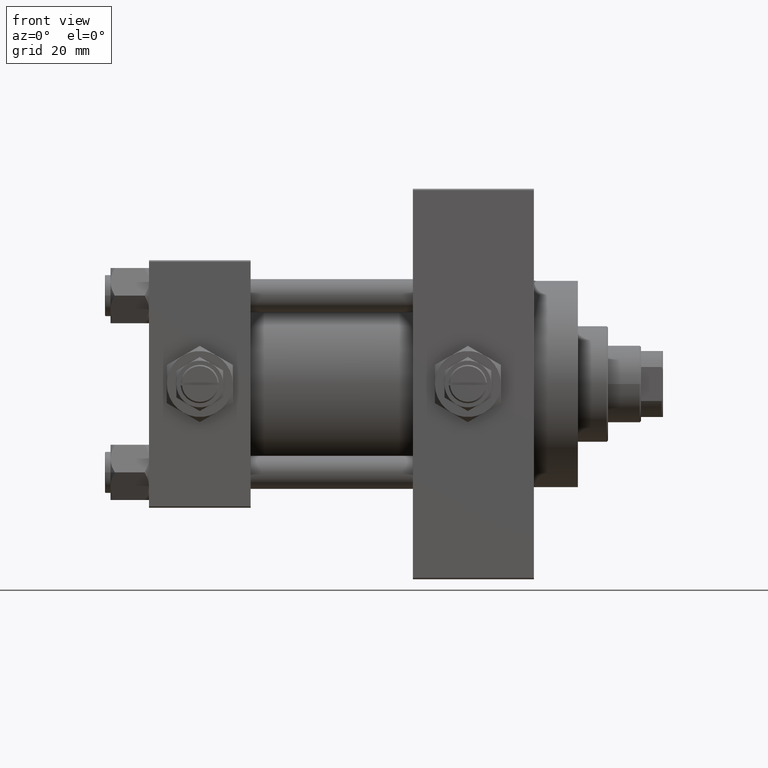
[diagram: clean part render]
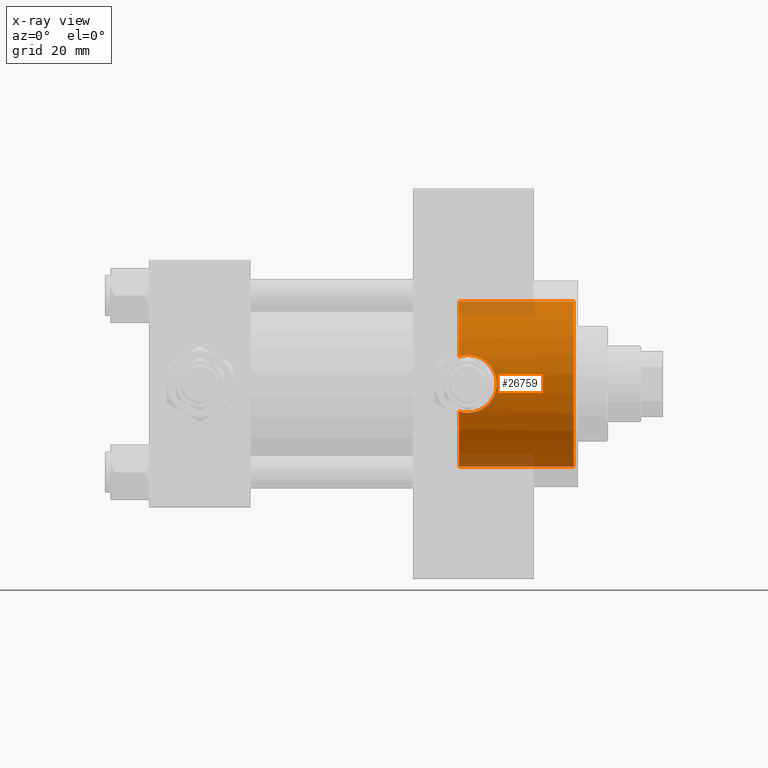
[diagram: x-ray — body ghosted, one internal face saturated and labeled with its STEP entity id]
A machine part, front view, then the same camera in x-ray: the body is ghosted and one INTERNAL B-rep face — a face not visible from any outside direction — is saturated and labeled: STEP entity #26759.
In plain terms, the highlighted cylindrical surface (partial cylindrical patch) has radius 30 mm, axis along (1, 0, 0).
Its self-contained STEP definition (entity closure, byte-faithful):
#203 = VERTEX_POINT ( 'NONE', #29561 ) ;
#425 = EDGE_CURVE ( 'NONE', #37211, #26352, #29955, .T. ) ;
#1015 = EDGE_CURVE ( 'NONE', #5178, #24598, #11704, .T. ) ;
#2721 = CARTESIAN_POINT ( 'NONE',  ( 126.3942240619416140, -29.97012602456190677, 1.382554006488360798 ) ) ;
#2940 = CARTESIAN_POINT ( 'NONE',  ( 112.7400000000000375, -28.29836037653064906, -9.960060240781684726 ) ) ;
#2979 = CARTESIAN_POINT ( 'NONE',  ( 119.3944568409847733, -28.30729626029972934, 9.938490869674264871 ) ) ;
#3225 = CARTESIAN_POINT ( 'NONE',  ( 123.1731662640724210, -29.00983069254146685, -7.647933622233231254 ) ) ;
#3243 = LINE ( 'NONE', #11740, #39235 ) ;
#3468 = CARTESIAN_POINT ( 'NONE',  ( 123.8917107446759616, -29.19304966441860927, -6.928961920144670827 ) ) ;
#3604 = DIRECTION ( 'NONE',  ( 0.000000000000000000, 0.000000000000000000, -1.000000000000000000 ) ) ;
#3643 = ORIENTED_EDGE ( 'NONE', *, *, #42988, .T. ) ;
#3718 = CARTESIAN_POINT ( 'NONE',  ( 124.5146658568484526, -29.37067223596217502, 6.119359129450982593 ) ) ;
#4958 = B_SPLINE_CURVE_WITH_KNOTS ( 'NONE', 3,
 ( #2940, #25662, #36927, #18674 ),
 .UNSPECIFIED., .F., .F.,
 ( 4, 4 ),
 ( 0.000000000000000000, 0.003306571874640978469 ),
 .UNSPECIFIED. ) ;
#5129 = CARTESIAN_POINT ( 'NONE',  ( 112.7400000000000375, 0.000000000000000000, 0.000000000000000000 ) ) ;
#5178 = VERTEX_POINT ( 'NONE', #19162 ) ;
#6469 = CARTESIAN_POINT ( 'NONE',  ( 116.6980899380639443, -28.10995553180402595, -10.47999999999999865 ) ) ;
#6710 = CARTESIAN_POINT ( 'NONE',  ( 122.9226840027825887, -28.94609101070398083, 7.897476117125369122 ) ) ;
#6965 = CARTESIAN_POINT ( 'NONE',  ( 124.3253861848219657, -29.31464168039806495, -6.402397357205709127 ) ) ;
#7210 = CARTESIAN_POINT ( 'NONE',  ( 122.9218863494081120, -28.94851325491607241, -7.876181147934426363 ) ) ;
#7850 = CARTESIAN_POINT ( 'NONE',  ( 112.7400000000000375, 0.000000000000000000, 0.000000000000000000 ) ) ;
#9294 = CARTESIAN_POINT ( 'NONE',  ( 115.4514479423002058, -28.10995553180402595, 10.47999999999999865 ) ) ;
#10221 = CARTESIAN_POINT ( 'NONE',  ( 117.3747204287126067, -28.14145658298057739, 10.39517839700973667 ) ) ;
#10465 = CARTESIAN_POINT ( 'NONE',  ( 125.4072711420143094, -29.64123673593073960, 4.670453208736272899 ) ) ;
#10709 = CARTESIAN_POINT ( 'NONE',  ( 121.5495707240801408, -28.65118564949818136, 8.896564878869943627 ) ) ;
#10971 = CARTESIAN_POINT ( 'NONE',  ( 121.2538723618131939, -28.59517209534082127, 9.074427182106706624 ) ) ;
#11219 = CARTESIAN_POINT ( 'NONE',  ( 126.4797582609246120, -29.99991555248752917, -0.6941883290317075739 ) ) ;
#11704 = LINE ( 'NONE', #26931, #32783 ) ;
#11740 = CARTESIAN_POINT ( 'NONE',  ( 112.7400000000000375, 3.673940397442059178E-15, 30.00000000000000000 ) ) ;
#12885 = DIRECTION ( 'NONE',  ( 0.000000000000000000, 0.000000000000000000, -1.000000000000000000 ) ) ;
#13286 = CARTESIAN_POINT ( 'NONE',  ( 116.0000000000000000, -28.10995553180402595, 10.48000000000000220 ) ) ;
#13522 = CARTESIAN_POINT ( 'NONE',  ( 114.9024063244625466, -28.12603194202300116, 10.43719296280628406 ) ) ;
#14221 = CARTESIAN_POINT ( 'NONE',  ( 118.7402809744361747, -28.23506111628062598, 10.13915124372663179 ) ) ;
#14714 = CARTESIAN_POINT ( 'NONE',  ( 124.3114165177488104, -29.31220912400724288, 6.392798821075968974 ) ) ;
#14971 = CARTESIAN_POINT ( 'NONE',  ( 125.0829805892810498, -29.53877363973344217, 5.271871285477991442 ) ) ;
#15216 = CARTESIAN_POINT ( 'NONE',  ( 125.8054432238869538, -29.77080659644961358, -3.714849565276018506 ) ) ;
#16799 = CARTESIAN_POINT ( 'NONE',  ( 113.2662976595621984, -28.23773034894800560, 10.13232128425887169 ) ) ;
#17872 = DIRECTION ( 'NONE',  ( 1.000000000000000000, 0.000000000000000000, 0.000000000000000000 ) ) ;
#18674 = CARTESIAN_POINT ( 'NONE',  ( 116.0000000000000000, -28.10995553180402950, -10.47999999999999865 ) ) ;
#18717 = CARTESIAN_POINT ( 'NONE',  ( 125.4118318432556549, -29.64271601913478449, -4.659776581799497386 ) ) ;
#19162 = CARTESIAN_POINT ( 'NONE',  ( 112.7400000000000375, 0.000000000000000000, -30.00000000000000000 ) ) ;
#19358 = CARTESIAN_POINT ( 'NONE',  ( 154.4999999999999432, 0.000000000000000000, -30.00000000000000000 ) ) ;
#20421 = EDGE_LOOP ( 'NONE', ( #23345, #33627, #42888, #40110, #46646, #3643, #46584, #23401 ) ) ;
#21462 = CARTESIAN_POINT ( 'NONE',  ( 112.7400000000000375, -28.29836037653064906, 9.960060240781690055 ) ) ;
#21702 = CARTESIAN_POINT ( 'NONE',  ( 126.4801199113428112, -30.00004188902683566, 0.3416054811791427448 ) ) ;
#21954 = CARTESIAN_POINT ( 'NONE',  ( 116.0000000000000000, -28.10995553180402595, 10.48000000000000220 ) ) ;
#22206 = CARTESIAN_POINT ( 'NONE',  ( 118.3951681404155352, -28.20981294759199542, -10.20840888712403505 ) ) ;
#22455 = CARTESIAN_POINT ( 'NONE',  ( 126.4630151315455322, -29.99405350600729392, 0.6904084209729847155 ) ) ;
#22695 = CARTESIAN_POINT ( 'NONE',  ( 117.3845237662671934, -28.13600843276157093, -10.41084356096757446 ) ) ;
#22847 = AXIS2_PLACEMENT_3D ( 'NONE', #5129, #32359, #12885 ) ;
#22913 = B_SPLINE_CURVE_WITH_KNOTS ( 'NONE', 3,
 ( #34207, #6469, #22695, #22206, #49496, #37976, #48513, #29706, #49006, #25702, #37727, #7210, #3225, #3468, #6965, #41239, #18717, #15216, #44995, #48763, #30446, #44748, #11219, #21702, #22455, #2721, #25453, #26448, #37227, #10465, #14971, #3718, #14714, #29947, #33460, #6710, #45253, #10709, #10971, #36964, #37475, #2979, #14221, #41486, #10221, #40737, #30206, #21954 ),
 .UNSPECIFIED., .F., .F.,
 ( 4, 2, 2, 2, 2, 2, 2, 2, 2, 2, 2, 2, 2, 2, 2, 2, 2, 2, 2, 2, 2, 2, 2, 4 ),
 ( 0.003306571874640978469, 0.005371767648722585581, 0.006404365535763388920, 0.007436963422804192259, 0.009502159196885838835, 0.01053475708392664391, 0.01156735497096745245, 0.01363255074504909556, 0.01569774651913071958, 0.01673034440617154547, 0.01776294229321237136, 0.01982813806729403008, 0.02086073595433485597, 0.02189333384137568880, 0.02395852961545732671, 0.02602372538953896808, 0.02705632327657979397, 0.02808892116362061292, 0.03015411693770228552, 0.03118671482474313569, 0.03221931271178398587, 0.03428450848586569316, 0.03531710637290652599, 0.03634970425994735882 ),
 .UNSPECIFIED. ) ;
#23086 = DIRECTION ( 'NONE',  ( 1.000000000000000000, 0.000000000000000000, 0.000000000000000000 ) ) ;
#23345 = ORIENTED_EDGE ( 'NONE', *, *, #28662, .F. ) ;
#23401 = ORIENTED_EDGE ( 'NONE', *, *, #425, .T. ) ;
#24527 = CARTESIAN_POINT ( 'NONE',  ( 113.8039147237728912, -28.19027760536563676, 10.26240314346359561 ) ) ;
#24598 = VERTEX_POINT ( 'NONE', #19358 ) ;
#25359 = CIRCLE ( 'NONE', #41366, 30.00000000000000000 ) ;
#25453 = CARTESIAN_POINT ( 'NONE',  ( 126.3429318193838640, -29.95232553474091119, 1.724057622897177344 ) ) ;
#25535 = CIRCLE ( 'NONE', #39919, 30.00000000000000000 ) ;
#25662 = CARTESIAN_POINT ( 'NONE',  ( 113.7960088294358769, -28.17670708149324810, -10.30569959443388761 ) ) ;
#25702 = CARTESIAN_POINT ( 'NONE',  ( 122.1182821996174255, -28.76674563627388892, -8.515509313587610762 ) ) ;
#26237 = VERTEX_POINT ( 'NONE', #27983 ) ;
#26352 = VERTEX_POINT ( 'NONE', #21462 ) ;
#26404 = EDGE_CURVE ( 'NONE', #203, #37211, #22913, .T. ) ;
#26448 = CARTESIAN_POINT ( 'NONE',  ( 126.1400674918413927, -29.88267782535193362, 2.735376480645547392 ) ) ;
#26759 = ADVANCED_FACE ( 'NONE', ( #43887 ), #47395, .F. ) ;
#26931 = CARTESIAN_POINT ( 'NONE',  ( 112.7400000000000375, 0.000000000000000000, -30.00000000000000000 ) ) ;
#27204 = DIRECTION ( 'NONE',  ( 0.000000000000000000, 0.000000000000000000, -1.000000000000000000 ) ) ;
#27983 = CARTESIAN_POINT ( 'NONE',  ( 112.7400000000000375, 3.673940397442059178E-15, 30.00000000000000000 ) ) ;
#28662 = EDGE_CURVE ( 'NONE', #26237, #26352, #43712, .T. ) ;
#29442 = EDGE_CURVE ( 'NONE', #29831, #24598, #25359, .T. ) ;
#29561 = CARTESIAN_POINT ( 'NONE',  ( 116.0000000000000000, -28.10995553180402950, -10.47999999999999865 ) ) ;
#29601 = DIRECTION ( 'NONE',  ( 0.000000000000000000, 0.000000000000000000, -1.000000000000000000 ) ) ;
#29706 = CARTESIAN_POINT ( 'NONE',  ( 120.6664021070156707, -28.48775938261396590, -9.408788335372458178 ) ) ;
#29831 = VERTEX_POINT ( 'NONE', #31760 ) ;
#29947 = CARTESIAN_POINT ( 'NONE',  ( 123.8766334625353664, -29.19190493786176432, 6.921428074835844768 ) ) ;
#29955 = B_SPLINE_CURVE_WITH_KNOTS ( 'NONE', 3,
 ( #13286, #9294, #13522, #24527, #16799, #36038 ),
 .UNSPECIFIED., .F., .F.,
 ( 4, 2, 4 ),
 ( 0.03634970425994735882, 0.03799692195981775600, 0.03964413965968814624 ),
 .UNSPECIFIED. ) ;
#30206 = CARTESIAN_POINT ( 'NONE',  ( 116.3438730021886158, -28.10995553180402240, 10.48000000000000753 ) ) ;
#30446 = CARTESIAN_POINT ( 'NONE',  ( 126.2088621083209148, -29.90629404900236210, -2.393471372070393510 ) ) ;
#30957 = CARTESIAN_POINT ( 'NONE',  ( 154.4999999999999432, 0.000000000000000000, 0.000000000000000000 ) ) ;
#31760 = CARTESIAN_POINT ( 'NONE',  ( 154.4999999999999432, 3.673940397442059178E-15, 30.00000000000000000 ) ) ;
#32359 = DIRECTION ( 'NONE',  ( 1.000000000000000000, -0.000000000000000000, -0.000000000000000000 ) ) ;
#32783 = VECTOR ( 'NONE', #42215, 1000.000000000000000 ) ;
#33460 = CARTESIAN_POINT ( 'NONE',  ( 123.6452155958480574, -29.13013352623692498, 7.176134000890638021 ) ) ;
#33627 = ORIENTED_EDGE ( 'NONE', *, *, #40723, .T. ) ;
#34207 = CARTESIAN_POINT ( 'NONE',  ( 116.0000000000000000, -28.10995553180402950, -10.47999999999999865 ) ) ;
#35205 = DIRECTION ( 'NONE',  ( 1.000000000000000000, 0.000000000000000000, 0.000000000000000000 ) ) ;
#36038 = CARTESIAN_POINT ( 'NONE',  ( 112.7400000000000375, -28.29836037653064906, 9.960060240781690055 ) ) ;
#36927 = CARTESIAN_POINT ( 'NONE',  ( 114.8822926212898068, -28.10995553180402950, -10.47999999999999865 ) ) ;
#36964 = CARTESIAN_POINT ( 'NONE',  ( 120.6483450916582143, -28.49013521307116292, 9.399004808299563862 ) ) ;
#36994 = CARTESIAN_POINT ( 'NONE',  ( 112.7400000000000375, -28.29836037653064906, -9.960060240781684726 ) ) ;
#37211 = VERTEX_POINT ( 'NONE', #47346 ) ;
#37227 = CARTESIAN_POINT ( 'NONE',  ( 125.9399912239310169, -29.81458687334005120, 3.392117035502133504 ) ) ;
#37475 = CARTESIAN_POINT ( 'NONE',  ( 120.3394417382619395, -28.44122229582506733, 9.545471696213175150 ) ) ;
#37727 = CARTESIAN_POINT ( 'NONE',  ( 122.3950967947522344, -28.82709093977711490, -8.309601500369884874 ) ) ;
#37976 = CARTESIAN_POINT ( 'NONE',  ( 119.3905241761370206, -28.31178435317267983, -9.922416159315373463 ) ) ;
#38086 = EDGE_CURVE ( 'NONE', #42224, #5178, #25535, .T. ) ;
#39235 = VECTOR ( 'NONE', #42243, 1000.000000000000000 ) ;
#39919 = AXIS2_PLACEMENT_3D ( 'NONE', #45403, #17872, #29601 ) ;
#40110 = ORIENTED_EDGE ( 'NONE', *, *, #1015, .F. ) ;
#40723 = EDGE_CURVE ( 'NONE', #26237, #29831, #3243, .T. ) ;
#40737 = CARTESIAN_POINT ( 'NONE',  ( 116.6875923004625122, -28.11626763150323782, 10.46311650470940613 ) ) ;
#41239 = CARTESIAN_POINT ( 'NONE',  ( 125.0902213596345405, -29.54095946462916800, -5.260287319037078468 ) ) ;
#41366 = AXIS2_PLACEMENT_3D ( 'NONE', #30957, #35205, #27204 ) ;
#41486 = CARTESIAN_POINT ( 'NONE',  ( 117.7201323274241531, -28.16049430193229242, 10.34368535468164119 ) ) ;
#42215 = DIRECTION ( 'NONE',  ( 1.000000000000000000, -0.000000000000000000, -0.000000000000000000 ) ) ;
#42224 = VERTEX_POINT ( 'NONE', #36994 ) ;
#42243 = DIRECTION ( 'NONE',  ( 1.000000000000000000, -0.000000000000000000, -0.000000000000000000 ) ) ;
#42888 = ORIENTED_EDGE ( 'NONE', *, *, #29442, .T. ) ;
#42988 = EDGE_CURVE ( 'NONE', #42224, #203, #4958, .T. ) ;
#43712 = CIRCLE ( 'NONE', #44497, 30.00000000000000000 ) ;
#43887 = FACE_OUTER_BOUND ( 'NONE', #20421, .T. ) ;
#44497 = AXIS2_PLACEMENT_3D ( 'NONE', #7850, #23086, #3604 ) ;
#44748 = CARTESIAN_POINT ( 'NONE',  ( 126.4119334145254783, -29.97602025324989938, -1.377942522026810002 ) ) ;
#44995 = CARTESIAN_POINT ( 'NONE',  ( 125.9217316417465042, -29.80941683571757039, -3.392461908593598086 ) ) ;
#45253 = CARTESIAN_POINT ( 'NONE',  ( 122.3991954878800783, -28.82380471925721821, 8.327394824909754689 ) ) ;
#45403 = CARTESIAN_POINT ( 'NONE',  ( 112.7400000000000375, 0.000000000000000000, 0.000000000000000000 ) ) ;
#46584 = ORIENTED_EDGE ( 'NONE', *, *, #26404, .T. ) ;
#46646 = ORIENTED_EDGE ( 'NONE', *, *, #38086, .F. ) ;
#47346 = CARTESIAN_POINT ( 'NONE',  ( 116.0000000000000000, -28.10995553180402595, 10.48000000000000220 ) ) ;
#47395 = CYLINDRICAL_SURFACE ( 'NONE', #22847, 30.00000000000000000 ) ;
#48513 = CARTESIAN_POINT ( 'NONE',  ( 119.7170611001097456, -28.35291915705129639, -9.804662585683468379 ) ) ;
#48763 = CARTESIAN_POINT ( 'NONE',  ( 126.1234663938197400, -29.87716762247598012, -2.732212426824468743 ) ) ;
#49006 = CARTESIAN_POINT ( 'NONE',  ( 121.2662955552271740, -28.59360380551413172, -9.086475383822238072 ) ) ;
#49496 = CARTESIAN_POINT ( 'NONE',  ( 118.7290047839929628, -28.24020088778831550, -10.12435328880594376 ) ) ;